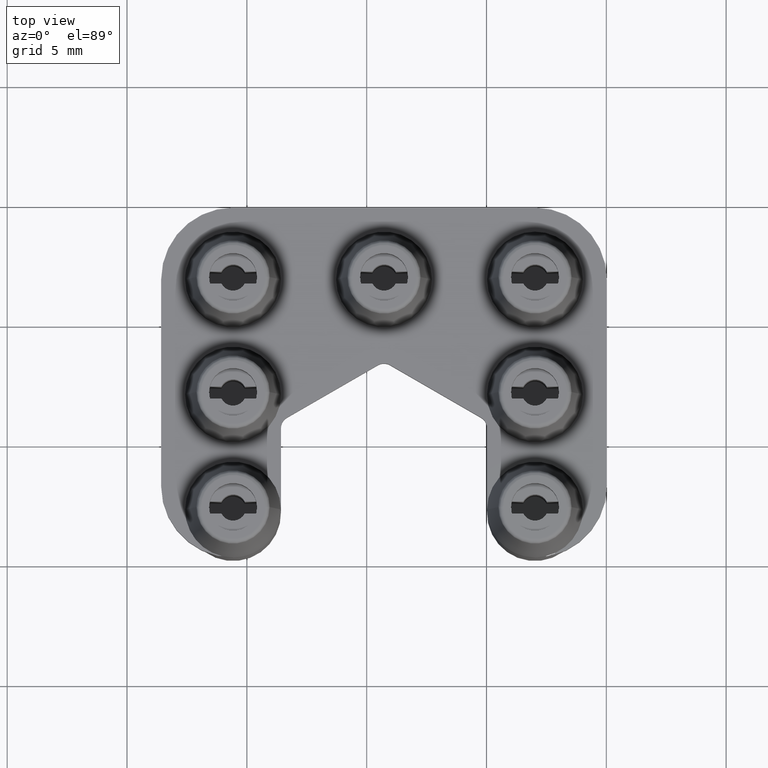
[diagram: clean part render]
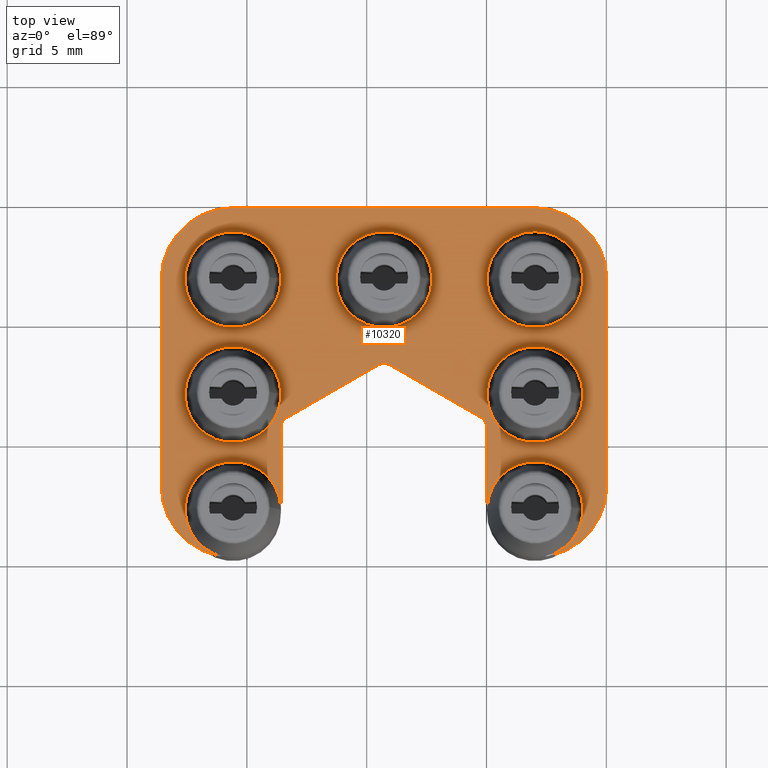
[diagram: same view with one face highlighted and labeled with its STEP entity id]
A machine part, top view. The second image highlights one B-rep face of the part: STEP entity #10320.
In plain terms, the highlighted planar face has unit normal (0, 0, -1).
Its self-contained STEP definition (entity closure, byte-faithful):
#4610=CARTESIAN_POINT('',(39.7129610115911,0.,0.));
#4620=DIRECTION('',(0.,1.,0.));
#4630=VECTOR('',#4620,1.);
#4640=LINE('',#4610,#4630);
#4650=CARTESIAN_POINT('',(39.7129610115911,49.,0.));
#4660=VERTEX_POINT('',#4650);
#4670=CARTESIAN_POINT('',(39.7129610115911,52.4060689770794,0.));
#4680=VERTEX_POINT('',#4670);
#4690=EDGE_CURVE('',#4660,#4680,#4640,.T.);
#5350=CARTESIAN_POINT('',(53.3129610115911,0.,0.));
#5360=DIRECTION('',(0.,-1.,0.));
#5370=VECTOR('',#5360,1.);
#5380=LINE('',#5350,#5370);
#5390=CARTESIAN_POINT('',(53.3129610115911,58.6,0.));
#5400=VERTEX_POINT('',#5390);
#5410=CARTESIAN_POINT('',(53.3129610115911,50.,0.));
#5420=VERTEX_POINT('',#5410);
#5430=EDGE_CURVE('',#5400,#5420,#5380,.T.);
#7940=CARTESIAN_POINT('',(46.0129610115911,58.6,2.72591468062979E-17));
#7950=VERTEX_POINT('',#7940);
#7980=CARTESIAN_POINT('',(44.0129610115911,58.6,0.));
#7990=DIRECTION('',(0.,0.,1.));
#8000=DIRECTION('',(-1.,0.,0.));
#8010=AXIS2_PLACEMENT_3D('',#7980,#7990,#8000);
#8020=CIRCLE('',#8010,2.);
#8030=CARTESIAN_POINT('',(42.0129610115911,58.6,-1.40737204249275E-14));
#8040=VERTEX_POINT('',#8030);
#8050=EDGE_CURVE('',#7950,#8040,#8020,.T.);
#8250=CARTESIAN_POINT('',(53.3129610115911,47.,0.));
#8260=DIRECTION('',(0.,0.,1.));
#8270=DIRECTION('',(-1.,0.,0.));
#8280=AXIS2_PLACEMENT_3D('',#8250,#8260,#8270);
#8290=PLANE('',#8280);
#8300=CARTESIAN_POINT('',(50.3129610115911,58.6,0.));
#8310=DIRECTION('',(0.,0.,1.));
#8320=DIRECTION('',(-1.,0.,0.));
#8330=AXIS2_PLACEMENT_3D('',#8300,#8310,#8320);
#8340=CIRCLE('',#8330,2.);
#8350=CARTESIAN_POINT('',(48.3129610115911,58.6,5.77735406875017E-16));
#8360=VERTEX_POINT('',#8350);
#8370=CARTESIAN_POINT('',(52.3129610115911,58.6,-5.50690371377545E-16));
#8380=VERTEX_POINT('',#8370);
#8390=EDGE_CURVE('',#8360,#8380,#8340,.T.);
#8400=ORIENTED_EDGE('',*,*,#8390,.T.);
#8410=CARTESIAN_POINT('',(52.264602638698,59.0371440944856,
7.36027257519578E-17));
#8420=VERTEX_POINT('',#8410);
#8430=EDGE_CURVE('',#8420,#8360,#8340,.T.);
#8440=ORIENTED_EDGE('',*,*,#8430,.T.);
#8450=EDGE_CURVE('',#8380,#8420,#8340,.T.);
#8460=ORIENTED_EDGE('',*,*,#8450,.T.);
#8470=EDGE_LOOP('',(#8460,#8440,#8400));
#8480=FACE_BOUND('',#8470,.T.);
#8490=EDGE_CURVE('',#8040,#7950,#8020,.T.);
#8500=ORIENTED_EDGE('',*,*,#8490,.T.);
#8510=ORIENTED_EDGE('',*,*,#8050,.T.);
#8520=EDGE_LOOP('',(#8510,#8500));
#8530=FACE_BOUND('',#8520,.T.);
#8540=CARTESIAN_POINT('',(37.7129610115911,53.8,0.));
#8550=DIRECTION('',(0.,0.,1.));
#8560=DIRECTION('',(-1.,0.,0.));
#8570=AXIS2_PLACEMENT_3D('',#8540,#8550,#8560);
#8580=CIRCLE('',#8570,2.);
#8590=CARTESIAN_POINT('',(35.7129610115911,53.8,0.));
#8600=VERTEX_POINT('',#8590);
#8610=CARTESIAN_POINT('',(39.7129610115911,53.8,0.));
#8620=VERTEX_POINT('',#8610);
#8630=EDGE_CURVE('',#8600,#8620,#8580,.T.);
#8640=ORIENTED_EDGE('',*,*,#8630,.T.);
#8650=EDGE_CURVE('',#8620,#8600,#8580,.T.);
#8660=ORIENTED_EDGE('',*,*,#8650,.T.);
#8670=EDGE_LOOP('',(#8660,#8640));
#8680=FACE_BOUND('',#8670,.T.);
#8690=CARTESIAN_POINT('',(37.7129610115911,58.6,0.));
#8700=DIRECTION('',(0.,0.,1.));
#8710=DIRECTION('',(-1.,0.,0.));
#8720=AXIS2_PLACEMENT_3D('',#8690,#8700,#8710);
#8730=CIRCLE('',#8720,2.);
#8740=CARTESIAN_POINT('',(35.7129610115911,58.6,0.));
#8750=VERTEX_POINT('',#8740);
#8760=CARTESIAN_POINT('',(39.7129610115911,58.6,0.));
#8770=VERTEX_POINT('',#8760);
#8780=EDGE_CURVE('',#8750,#8770,#8730,.T.);
#8790=ORIENTED_EDGE('',*,*,#8780,.T.);
#8800=CARTESIAN_POINT('',(37.275816917106,60.551641627107,0.));
#8810=VERTEX_POINT('',#8800);
#8820=EDGE_CURVE('',#8810,#8750,#8730,.T.);
#8830=ORIENTED_EDGE('',*,*,#8820,.T.);
#8840=EDGE_CURVE('',#8770,#8810,#8730,.T.);
#8850=ORIENTED_EDGE('',*,*,#8840,.T.);
#8860=EDGE_LOOP('',(#8850,#8830,#8790));
#8870=FACE_BOUND('',#8860,.T.);
#8880=CARTESIAN_POINT('',(50.3129610115911,53.8,0.));
#8890=DIRECTION('',(0.,0.,1.));
#8900=DIRECTION('',(-1.,0.,0.));
#8910=AXIS2_PLACEMENT_3D('',#8880,#8890,#8900);
#8920=CIRCLE('',#8910,2.);
#8930=CARTESIAN_POINT('',(48.3129610115911,53.8,-5.58423228401547E-15));
#8940=VERTEX_POINT('',#8930);
#8950=CARTESIAN_POINT('',(52.3129610115911,53.8,2.72591468062979E-17));
#8960=VERTEX_POINT('',#8950);
#8970=EDGE_CURVE('',#8940,#8960,#8920,.T.);
#8980=ORIENTED_EDGE('',*,*,#8970,.T.);
#8990=EDGE_CURVE('',#8960,#8940,#8920,.T.);
#9000=ORIENTED_EDGE('',*,*,#8990,.T.);
#9010=EDGE_LOOP('',(#9000,#8980));
#9020=FACE_BOUND('',#9010,.T.);
#9030=CARTESIAN_POINT('',(50.3129610115911,49.,0.));
#9040=DIRECTION('',(0.,0.,1.));
#9050=DIRECTION('',(-1.,0.,0.));
#9060=AXIS2_PLACEMENT_3D('',#9030,#9040,#9050);
#9070=CIRCLE('',#9060,2.);
#9080=CARTESIAN_POINT('',(50.3129610115911,47.,0.));
#9090=VERTEX_POINT('',#9080);
#9100=CARTESIAN_POINT('',(52.3129610115911,49.,0.));
#9110=VERTEX_POINT('',#9100);
#9120=EDGE_CURVE('',#9090,#9110,#9070,.T.);
#9130=ORIENTED_EDGE('',*,*,#9120,.T.);
#9140=CARTESIAN_POINT('',(50.3129610115911,50.,0.));
#9150=DIRECTION('',(0.,0.,-1.));
#9160=DIRECTION('',(-1.,0.,0.));
#9170=AXIS2_PLACEMENT_3D('',#9140,#9150,#9160);
#9180=CIRCLE('',#9170,3.);
#9190=EDGE_CURVE('',#5420,#9090,#9180,.T.);
#9200=ORIENTED_EDGE('',*,*,#9190,.T.);
#9210=ORIENTED_EDGE('',*,*,#5430,.T.);
#9220=CARTESIAN_POINT('',(50.3129610115911,58.6,0.));
#9230=DIRECTION('',(0.,0.,1.));
#9240=DIRECTION('',(1.,0.,0.));
#9250=AXIS2_PLACEMENT_3D('',#9220,#9230,#9240);
#9260=CIRCLE('',#9250,3.);
#9270=CARTESIAN_POINT('',(50.3129610115911,61.6,0.));
#9280=VERTEX_POINT('',#9270);
#9290=EDGE_CURVE('',#5400,#9280,#9260,.T.);
#9300=ORIENTED_EDGE('',*,*,#9290,.F.);
#9310=CARTESIAN_POINT('',(0.,61.6,0.));
#9320=DIRECTION('',(1.,0.,0.));
#9330=VECTOR('',#9320,1.);
#9340=LINE('',#9310,#9330);
#9350=CARTESIAN_POINT('',(37.7129610115911,61.6,0.));
#9360=VERTEX_POINT('',#9350);
#9370=EDGE_CURVE('',#9360,#9280,#9340,.T.);
#9380=ORIENTED_EDGE('',*,*,#9370,.T.);
#9390=CARTESIAN_POINT('',(37.7129610115911,58.6,0.));
#9400=DIRECTION('',(0.,0.,1.));
#9410=DIRECTION('',(1.,0.,0.));
#9420=AXIS2_PLACEMENT_3D('',#9390,#9400,#9410);
#9430=CIRCLE('',#9420,3.);
#9440=CARTESIAN_POINT('',(34.7129610115911,58.6,0.));
#9450=VERTEX_POINT('',#9440);
#9460=EDGE_CURVE('',#9360,#9450,#9430,.T.);
#9470=ORIENTED_EDGE('',*,*,#9460,.F.);
#9480=CARTESIAN_POINT('',(34.7129610115911,0.,0.));
#9490=DIRECTION('',(0.,1.,0.));
#9500=VECTOR('',#9490,1.);
#9510=LINE('',#9480,#9500);
#9520=CARTESIAN_POINT('',(34.7129610115911,50.,0.));
#9530=VERTEX_POINT('',#9520);
#9540=EDGE_CURVE('',#9530,#9450,#9510,.T.);
#9550=ORIENTED_EDGE('',*,*,#9540,.T.);
#9560=CARTESIAN_POINT('',(37.7129610115911,50.,0.));
#9570=DIRECTION('',(0.,0.,1.));
#9580=DIRECTION('',(1.,0.,0.));
#9590=AXIS2_PLACEMENT_3D('',#9560,#9570,#9580);
#9600=CIRCLE('',#9590,3.);
#9610=CARTESIAN_POINT('',(37.7129610115989,47.,2.2261006273221E-13));
#9620=VERTEX_POINT('',#9610);
#9630=EDGE_CURVE('',#9530,#9620,#9600,.T.);
#9640=ORIENTED_EDGE('',*,*,#9630,.F.);
#9650=CARTESIAN_POINT('',(37.7129610115911,49.,0.));
#9660=DIRECTION('',(0.,0.,1.));
#9670=DIRECTION('',(-1.,0.,0.));
#9680=AXIS2_PLACEMENT_3D('',#9650,#9660,#9670);
#9690=CIRCLE('',#9680,2.);
#9700=CARTESIAN_POINT('',(35.7129610115911,49.,0.));
#9710=VERTEX_POINT('',#9700);
#9720=EDGE_CURVE('',#9710,#9620,#9690,.T.);
#9730=ORIENTED_EDGE('',*,*,#9720,.T.);
#9740=EDGE_CURVE('',#4660,#9710,#9690,.T.);
#9750=ORIENTED_EDGE('',*,*,#9740,.T.);
#9760=ORIENTED_EDGE('',*,*,#4690,.F.);
#9770=CARTESIAN_POINT('',(40.2129610115911,52.4060689770794,0.));
#9780=DIRECTION('',(0.,0.,1.));
#9790=DIRECTION('',(1.,0.,0.));
#9800=AXIS2_PLACEMENT_3D('',#9770,#9780,#9790);
#9810=CIRCLE('',#9800,0.5);
#9820=CARTESIAN_POINT('',(39.9629610115911,52.8390816789717,0.));
#9830=VERTEX_POINT('',#9820);
#9840=EDGE_CURVE('',#9830,#4680,#9810,.T.);
#9850=ORIENTED_EDGE('',*,*,#9840,.T.);
#9860=CARTESIAN_POINT('',(0.,29.766455381315,0.));
#9870=DIRECTION('',(-0.866025403784438,-0.5,0.));
#9880=VECTOR('',#9870,1.);
#9890=LINE('',#9860,#9880);
#9900=CARTESIAN_POINT('',(43.7629610115911,55.0330127018922,0.));
#9910=VERTEX_POINT('',#9900);
#9920=EDGE_CURVE('',#9910,#9830,#9890,.T.);
#9930=ORIENTED_EDGE('',*,*,#9920,.T.);
#9940=CARTESIAN_POINT('',(44.0129610115911,54.6,0.));
#9950=DIRECTION('',(0.,0.,1.));
#9960=DIRECTION('',(1.,0.,0.));
#9970=AXIS2_PLACEMENT_3D('',#9940,#9950,#9960);
#9980=CIRCLE('',#9970,0.5);
#9990=CARTESIAN_POINT('',(44.2629610115912,55.0330127018922,0.));
#10000=VERTEX_POINT('',#9990);
#10010=EDGE_CURVE('',#10000,#9910,#9980,.T.);
#10020=ORIENTED_EDGE('',*,*,#10010,.T.);
#10030=CARTESIAN_POINT('',(0.,80.5882451570643,0.));
#10040=DIRECTION('',(-0.866025403784439,0.5,0.));
#10050=VECTOR('',#10040,1.);
#10060=LINE('',#10030,#10050);
#10070=CARTESIAN_POINT('',(48.0629610115911,52.8390816789716,0.));
#10080=VERTEX_POINT('',#10070);
#10090=EDGE_CURVE('',#10080,#10000,#10060,.T.);
#10100=ORIENTED_EDGE('',*,*,#10090,.T.);
#10110=CARTESIAN_POINT('',(47.8129610115911,52.4060689770794,0.));
#10120=DIRECTION('',(0.,0.,-1.));
#10130=DIRECTION('',(-1.,0.,0.));
#10140=AXIS2_PLACEMENT_3D('',#10110,#10120,#10130);
#10150=CIRCLE('',#10140,0.5);
#10160=CARTESIAN_POINT('',(48.3129610115911,52.4060689770794,0.));
#10170=VERTEX_POINT('',#10160);
#10180=EDGE_CURVE('',#10080,#10170,#10150,.T.);
#10190=ORIENTED_EDGE('',*,*,#10180,.F.);
#10200=CARTESIAN_POINT('',(48.3129610115911,0.,0.));
#10210=DIRECTION('',(0.,-1.,0.));
#10220=VECTOR('',#10210,1.);
#10230=LINE('',#10200,#10220);
#10240=CARTESIAN_POINT('',(48.3129610115911,49.,0.));
#10250=VERTEX_POINT('',#10240);
#10260=EDGE_CURVE('',#10170,#10250,#10230,.T.);
#10270=ORIENTED_EDGE('',*,*,#10260,.F.);
#10280=EDGE_CURVE('',#9110,#10250,#9070,.T.);
#10290=ORIENTED_EDGE('',*,*,#10280,.T.);
#10300=EDGE_LOOP('',(#10290,#10270,#10190,#10100,#10020,#9930,#9850,
#9760,#9750,#9730,#9640,#9550,#9470,#9380,#9300,#9210,#9200,#9130));
#10310=FACE_OUTER_BOUND('',#10300,.T.);
#10320=ADVANCED_FACE('',(#8480,#8530,#8680,#8870,#9020,#10310),#8290,.F.
);